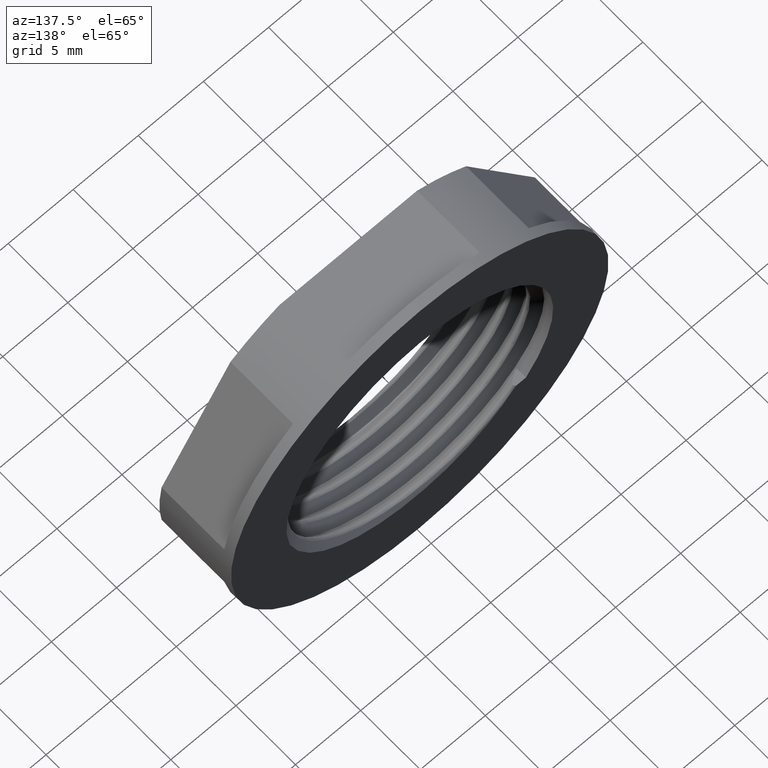
[diagram: clean part render]
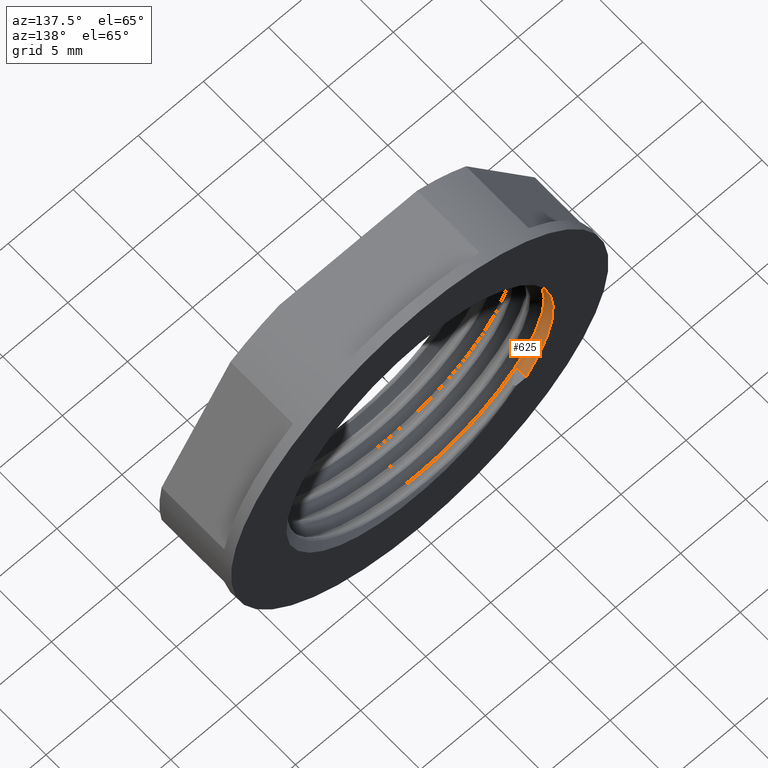
[diagram: same view with one face highlighted and labeled with its STEP entity id]
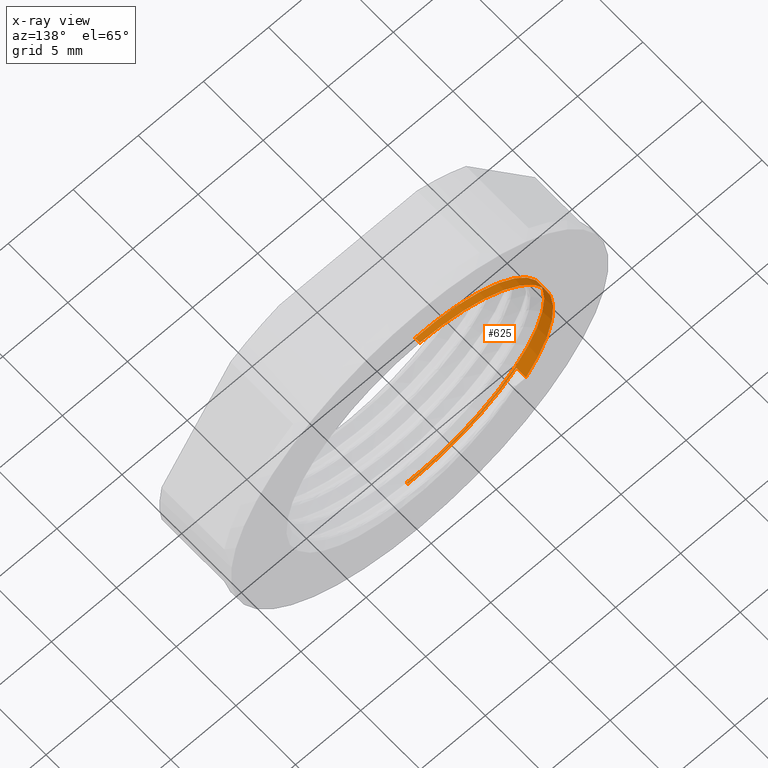
[diagram: x-ray of the same camera — body ghosted, the highlighted face saturated]
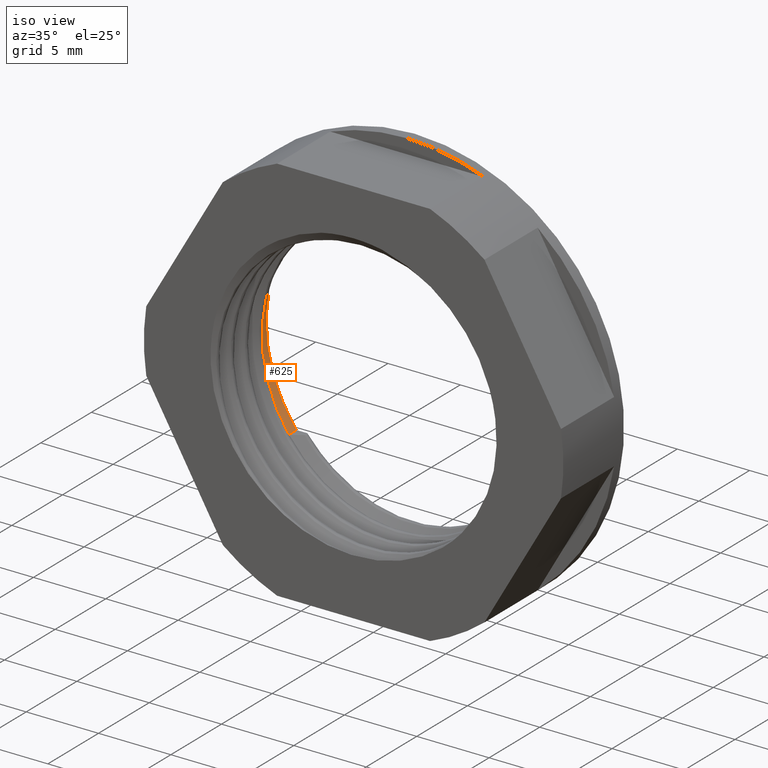
[diagram: same view with one face highlighted and labeled with its STEP entity id]
A machine part, auxiliary view. The second image highlights one B-rep face of the part: STEP entity #625.
The next image is the same camera in x-ray: the body ghosted, the highlighted face saturated — about 0% of this face is hidden behind the body in this view.
A second angle (iso view) of the same face is appended — the face is thin or edge-on in the first view.
In plain terms, the highlighted cylindrical surface (partial cylindrical patch) has radius 10.25 mm, axis along (0, 1, 0).
Its self-contained STEP definition (entity closure, byte-faithful):
#19 =( BOUNDED_CURVE ( )  B_SPLINE_CURVE ( 2, ( #1068, #1096, #1081, #1098, #1079, #1106, #1071, #1102, #1090 ),
 .UNSPECIFIED., .F., .T. ) 
 B_SPLINE_CURVE_WITH_KNOTS ( ( 3, 2, 2, 2, 3 ),
 ( -0.1943399882098417500, -0.1862424830706367300, -0.1781449779314316900, -0.1700474727922266800, -0.1619499676530216600 ),
 .UNSPECIFIED. ) 
 CURVE ( )  GEOMETRIC_REPRESENTATION_ITEM ( )  RATIONAL_B_SPLINE_CURVE ( ( 1.000000000000000000, 0.9238795325112869600, 1.000000000000000000, 0.9238795325112869600, 1.000000000000000000, 0.9238795325112869600, 1.000000000000000000, 0.9238795325112869600, 1.000000000000000000 ) ) 
 REPRESENTATION_ITEM ( '' )  );
#20 =( BOUNDED_CURVE ( )  B_SPLINE_CURVE ( 2, ( #1046, #1018, #1053, #1037, #1047 ),
 .UNSPECIFIED., .F., .T. ) 
 B_SPLINE_CURVE_WITH_KNOTS ( ( 3, 2, 3 ),
 ( 0.0000000000000000000, 0.001414267250195884300, 0.009481312470616122900 ),
 .UNSPECIFIED. ) 
 CURVE ( )  GEOMETRIC_REPRESENTATION_ITEM ( )  RATIONAL_B_SPLINE_CURVE ( ( 0.9779891419076525100, 0.9866550042428943200, 1.000000000000000000, 0.9238795325112868500, 1.000000000000000000 ) ) 
 REPRESENTATION_ITEM ( '' )  );
#187 = CARTESIAN_POINT ( 'NONE',  ( 0.0000000000000000000, -10.95000000000000100, 10.25000000000000000 ) ) ;
#206 = CARTESIAN_POINT ( 'NONE',  ( -8.162260716247670800, -10.95000000000000100, -6.200000000000003700 ) ) ;
#219 = CARTESIAN_POINT ( 'NONE',  ( -6.276314845630190100E-016, -12.05784621732576100, -10.25000000000000000 ) ) ;
#224 = CARTESIAN_POINT ( 'NONE',  ( -6.276314845630190100E-016, -11.96715378267520400, -10.25000000000000000 ) ) ;
#229 = CARTESIAN_POINT ( 'NONE',  ( -8.162260946053921300, -11.76129269582838100, -6.199999880538899600 ) ) ;
#252 = CARTESIAN_POINT ( 'NONE',  ( 1.882894453689054900E-015, -11.35284621732575900, 10.25000000000000000 ) ) ;
#554 = EDGE_CURVE ( 'NONE', #770, #789, #20, .T. ) ;
#555 = EDGE_CURVE ( 'NONE', #755, #770, #1056, .T. ) ;
#556 = EDGE_CURVE ( 'NONE', #755, #732, #1437, .T. ) ;
#557 = EDGE_CURVE ( 'NONE', #752, #789, #1040, .T. ) ;
#558 = EDGE_CURVE ( 'NONE', #783, #732, #1014, .T. ) ;
#562 = EDGE_CURVE ( 'NONE', #783, #752, #19, .T. ) ;
#625 = ADVANCED_FACE ( 'NONE', ( #1873 ), #1865, .F. ) ;
#671 = ORIENTED_EDGE ( 'NONE', *, *, #562, .T. ) ;
#682 = EDGE_LOOP ( 'NONE', ( #671, #769, #699, #735, #722, #728 ) ) ;
#699 = ORIENTED_EDGE ( 'NONE', *, *, #554, .F. ) ;
#722 = ORIENTED_EDGE ( 'NONE', *, *, #556, .T. ) ;
#728 = ORIENTED_EDGE ( 'NONE', *, *, #558, .F. ) ;
#732 = VERTEX_POINT ( 'NONE', #187 ) ;
#735 = ORIENTED_EDGE ( 'NONE', *, *, #555, .F. ) ;
#752 = VERTEX_POINT ( 'NONE', #219 ) ;
#755 = VERTEX_POINT ( 'NONE', #206 ) ;
#769 = ORIENTED_EDGE ( 'NONE', *, *, #557, .T. ) ;
#770 = VERTEX_POINT ( 'NONE', #229 ) ;
#783 = VERTEX_POINT ( 'NONE', #252 ) ;
#789 = VERTEX_POINT ( 'NONE', #224 ) ;
#1011 = DIRECTION ( 'NONE',  ( 0.0000000000000000000, 1.000000000000000000, 0.0000000000000000000 ) ) ;
#1013 = DIRECTION ( 'NONE',  ( 0.0000000000000000000, 0.0000000000000000000, 1.000000000000000000 ) ) ;
#1014 = LINE ( 'NONE', #1019, #1465 ) ;
#1015 = DIRECTION ( 'NONE',  ( 0.0000000000000000000, 1.000000000000000000, 0.0000000000000000000 ) ) ;
#1018 = CARTESIAN_POINT ( 'NONE',  ( -7.740677981542775800, -11.77643719357500100, -6.755011032781452800 ) ) ;
#1019 = CARTESIAN_POINT ( 'NONE',  ( 0.0000000000000000000, -20.94999999999999900, 10.25000000000000000 ) ) ;
#1023 = DIRECTION ( 'NONE',  ( 0.0000000000000000000, 1.000000000000000000, 0.0000000000000000000 ) ) ;
#1035 = CARTESIAN_POINT ( 'NONE',  ( -8.162260716247669000, -20.94999999999999900, -6.200000000000005500 ) ) ;
#1037 = CARTESIAN_POINT ( 'NONE',  ( -4.245689014324224100, -11.87902878267522400, -10.25000000000000400 ) ) ;
#1039 = CARTESIAN_POINT ( 'NONE',  ( 0.0000000000000000000, -10.95000000000000100, 0.0000000000000000000 ) ) ;
#1040 = LINE ( 'NONE', #1049, #1449 ) ;
#1046 = CARTESIAN_POINT ( 'NONE',  ( -8.162260946053921300, -11.76129269582838100, -6.199999880538899600 ) ) ;
#1047 = CARTESIAN_POINT ( 'NONE',  ( -6.276314845630190100E-016, -11.96715378267520400, -10.25000000000000000 ) ) ;
#1049 = CARTESIAN_POINT ( 'NONE',  ( 1.255262969126037200E-015, -20.94999999999999900, -10.25000000000000000 ) ) ;
#1053 = CARTESIAN_POINT ( 'NONE',  ( -7.247844507162114700, -11.79090378267520300, -7.247844507162114700 ) ) ;
#1055 = DIRECTION ( 'NONE',  ( -0.0000000000000000000, -1.000000000000000000, -0.0000000000000000000 ) ) ;
#1056 = LINE ( 'NONE', #1035, #1432 ) ;
#1068 = CARTESIAN_POINT ( 'NONE',  ( 1.882894453689054900E-015, -11.35284621732575900, 10.25000000000000000 ) ) ;
#1071 = CARTESIAN_POINT ( 'NONE',  ( -7.247844507162113800, -11.88159621732575700, -7.247844507162113800 ) ) ;
#1079 = CARTESIAN_POINT ( 'NONE',  ( -10.25000000000000200, -11.70534621732575800, 0.0000000000000000000 ) ) ;
#1081 = CARTESIAN_POINT ( 'NONE',  ( -7.247844507162113800, -11.52909621732575800, 7.247844507162113800 ) ) ;
#1090 = CARTESIAN_POINT ( 'NONE',  ( -6.276314845630190100E-016, -12.05784621732576100, -10.25000000000000000 ) ) ;
#1096 = CARTESIAN_POINT ( 'NONE',  ( -4.245689014324229400, -11.44097121732574600, 10.25000000000000000 ) ) ;
#1098 = CARTESIAN_POINT ( 'NONE',  ( -10.25000000000000000, -11.61722121732576000, 4.245689014324229400 ) ) ;
#1102 = CARTESIAN_POINT ( 'NONE',  ( -4.245689014324224100, -11.96972121732576400, -10.25000000000000000 ) ) ;
#1106 = CARTESIAN_POINT ( 'NONE',  ( -10.25000000000000000, -11.79347121732575800, -4.245689014324224100 ) ) ;
#1432 = VECTOR ( 'NONE', #1055, 1000.000000000000000 ) ;
#1437 = CIRCLE ( 'NONE', #1451, 10.25000000000000000 ) ;
#1449 = VECTOR ( 'NONE', #1015, 1000.000000000000000 ) ;
#1451 = AXIS2_PLACEMENT_3D ( 'NONE', #1039, #1011, #1013 ) ;
#1465 = VECTOR ( 'NONE', #1023, 1000.000000000000000 ) ;
#1518 = AXIS2_PLACEMENT_3D ( 'NONE', #1847, #1871, #1876 ) ;
#1847 = CARTESIAN_POINT ( 'NONE',  ( 0.0000000000000000000, -20.94999999999999900, 0.0000000000000000000 ) ) ;
#1865 = CYLINDRICAL_SURFACE ( 'NONE', #1518, 10.25000000000000000 ) ;
#1871 = DIRECTION ( 'NONE',  ( 0.0000000000000000000, 1.000000000000000000, 0.0000000000000000000 ) ) ;
#1873 = FACE_OUTER_BOUND ( 'NONE', #682, .T. ) ;
#1876 = DIRECTION ( 'NONE',  ( 0.0000000000000000000, 0.0000000000000000000, 1.000000000000000000 ) ) ;